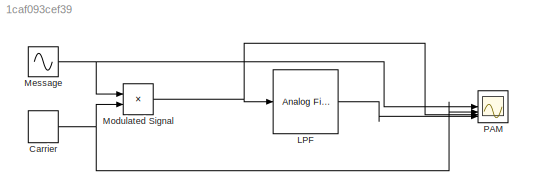
MODEL slx_1caf093cef39
KIND model
CONFIG AbsTol = auto
CONFIG EnableMultiTasking = off
CONFIG FixedStep = auto
CONFIG MaxStep = auto
CONFIG MinStep = auto
CONFIG RelTol = 1e-3
CONFIG SampleTimeConstraint = Unconstrained
CONFIG SolverName = VariableStepAuto
CONFIG StartTime = 0.0
CONFIG StopTime = 1.0
BLOCK [DiscretePulseGenerator] Carrier
  Period = 0.02
  PulseType = Time based
  PulseWidth = 50
BLOCK [Reference] LPF  REF=dspfdesign/Analog
Filter Design
  SourceBlock = dspfdesign/Analog\nFilter Design
  SourceType = Analog Filter Design
BLOCK [Sin] Message
  Frequency = 2*pi*1
  SampleTime = 1/1000
BLOCK [Product] Modulated Signal
BLOCK [Scope] PAM
  Floating = off
  NumInputPorts = 4
  ScopeSpecificationString = Simulink.scopes.TimeScopeBlockCfg('CurrentConfiguration', extmgr.ConfigurationSet(extmgr.Configuration('Core','General UI',true,'FigureColor',[1 1 1]),extmgr.Configuration('Core','Source UI',true),extmgr.Configuration('Sources','WiredSimulink',true),extmgr.Configuration('Visuals','Time Domain',true,'SerializedDisplays',{struct('MinYLimReal','-1.25','MaxYLimReal','1.25','YLabelReal','','MinYLimMag'...<+3995ch>
NET Carrier:1 -> Modulated Signal:2, PAM:2
LINE LPF:1 -> PAM:4
NET Message:1 -> Modulated Signal:1, PAM:1
NET Modulated Signal:1 -> LPF:1, PAM:3
note: NET lines group one-source signal fan-out (src -> all destinations, sorted); 1:1 wires keep LINE
